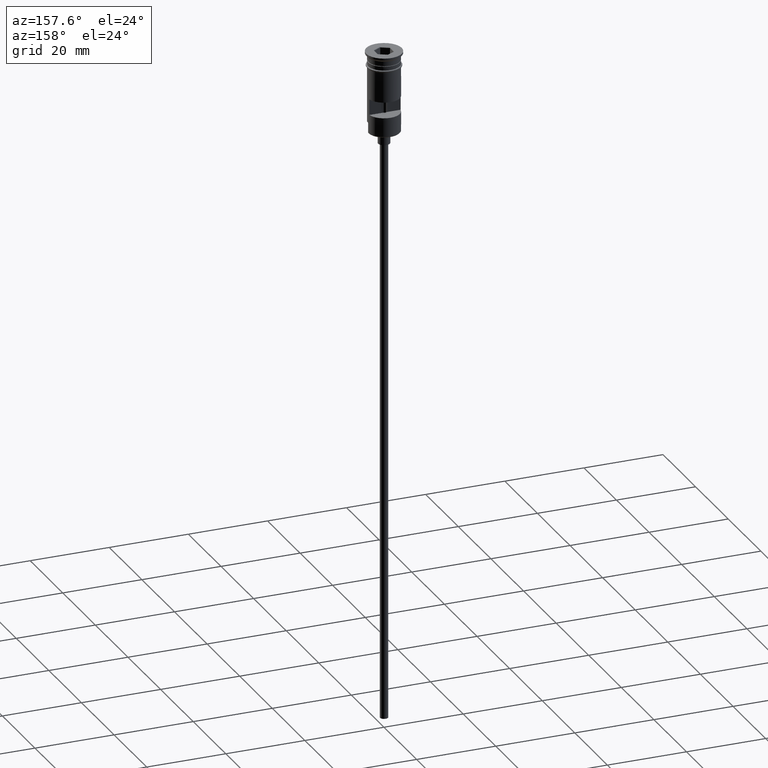
[diagram: clean part render]
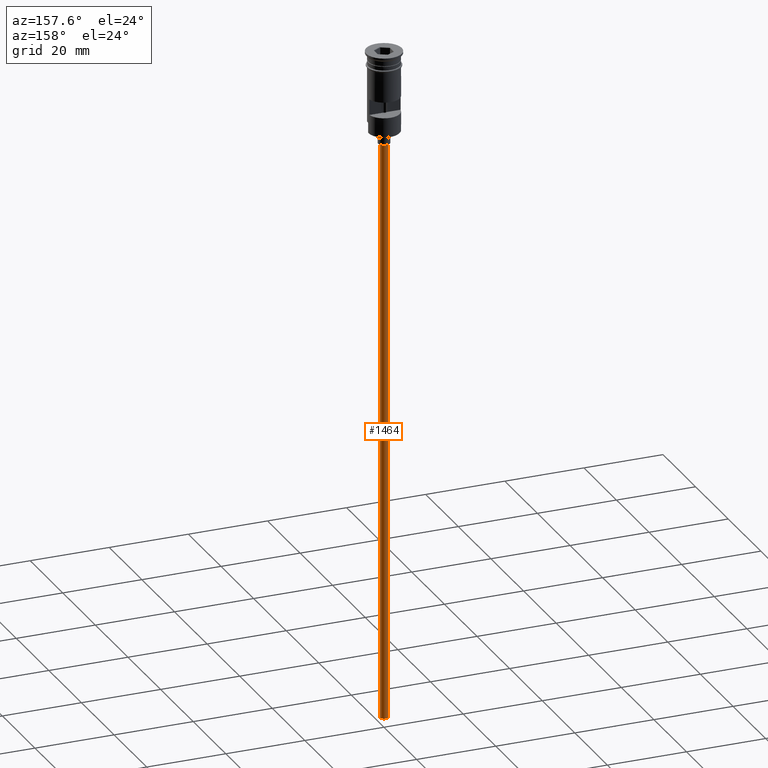
[diagram: same view with one face highlighted and labeled with its STEP entity id]
A machine part, auxiliary view. The second image highlights one B-rep face of the part: STEP entity #1464.
In plain terms, the highlighted cylindrical surface (edge-blend (fillet) strip) has radius 1 mm, axis along (-0, -0, 1).
Its self-contained STEP definition (entity closure, byte-faithful):
#23 = AXIS2_PLACEMENT_3D ( 'NONE', #528, #261, #415 ) ;
#49 = ORIENTED_EDGE ( 'NONE', *, *, #1557, .T. ) ;
#66 = DIRECTION ( 'NONE',  ( -0.000000000000000000, -0.000000000000000000, 1.000000000000000000 ) ) ;
#101 = DIRECTION ( 'NONE',  ( 0.000000000000000000, 0.000000000000000000, -1.000000000000000000 ) ) ;
#179 = CARTESIAN_POINT ( 'NONE',  ( 0.9999999999999997780, 0.000000000000000000, -170.4999999999999716 ) ) ;
#188 = EDGE_CURVE ( 'NONE', #202, #306, #522, .T. ) ;
#202 = VERTEX_POINT ( 'NONE', #823 ) ;
#245 = VERTEX_POINT ( 'NONE', #1552 ) ;
#261 = DIRECTION ( 'NONE',  ( 0.000000000000000000, 0.000000000000000000, -1.000000000000000000 ) ) ;
#306 = VERTEX_POINT ( 'NONE', #1489 ) ;
#331 = FACE_OUTER_BOUND ( 'NONE', #772, .T. ) ;
#415 = DIRECTION ( 'NONE',  ( -1.000000000000000000, 0.000000000000000000, 0.000000000000000000 ) ) ;
#436 = VECTOR ( 'NONE', #994, 1000.000000000000000 ) ;
#522 = LINE ( 'NONE', #632, #436 ) ;
#528 = CARTESIAN_POINT ( 'NONE',  ( 0.000000000000000000, 0.000000000000000000, -170.4999999999999716 ) ) ;
#578 = DIRECTION ( 'NONE',  ( 1.000000000000000000, 0.000000000000000000, 0.000000000000000000 ) ) ;
#584 = ORIENTED_EDGE ( 'NONE', *, *, #188, .T. ) ;
#586 = LINE ( 'NONE', #179, #1187 ) ;
#617 = ORIENTED_EDGE ( 'NONE', *, *, #903, .F. ) ;
#632 = CARTESIAN_POINT ( 'NONE',  ( -0.9999999999999997780, 1.224646799147352961E-16, -170.4999999999999716 ) ) ;
#683 = ORIENTED_EDGE ( 'NONE', *, *, #1060, .F. ) ;
#772 = EDGE_LOOP ( 'NONE', ( #617, #584, #49, #683 ) ) ;
#802 = CYLINDRICAL_SURFACE ( 'NONE', #985, 0.9999999999999997780 ) ;
#823 = CARTESIAN_POINT ( 'NONE',  ( -0.9999999999999997780, 1.224646799147352961E-16, -170.4999999999999716 ) ) ;
#903 = EDGE_CURVE ( 'NONE', #202, #245, #912, .T. ) ;
#907 = VERTEX_POINT ( 'NONE', #1475 ) ;
#912 = CIRCLE ( 'NONE', #23, 0.9999999999999997780 ) ;
#985 = AXIS2_PLACEMENT_3D ( 'NONE', #1172, #66, #578 ) ;
#994 = DIRECTION ( 'NONE',  ( -0.000000000000000000, -0.000000000000000000, 1.000000000000000000 ) ) ;
#1060 = EDGE_CURVE ( 'NONE', #245, #907, #586, .T. ) ;
#1101 = CIRCLE ( 'NONE', #1363, 0.9999999999999997780 ) ;
#1172 = CARTESIAN_POINT ( 'NONE',  ( 0.000000000000000000, 0.000000000000000000, -170.4999999999999716 ) ) ;
#1187 = VECTOR ( 'NONE', #1280, 1000.000000000000000 ) ;
#1280 = DIRECTION ( 'NONE',  ( -0.000000000000000000, -0.000000000000000000, 1.000000000000000000 ) ) ;
#1363 = AXIS2_PLACEMENT_3D ( 'NONE', #1421, #101, #1566 ) ;
#1421 = CARTESIAN_POINT ( 'NONE',  ( 0.000000000000000000, 0.000000000000000000, -23.49999999999999645 ) ) ;
#1464 = ADVANCED_FACE ( 'NONE', ( #331 ), #802, .T. ) ;
#1475 = CARTESIAN_POINT ( 'NONE',  ( 0.9999999999999997780, 0.000000000000000000, -23.49999999999999645 ) ) ;
#1489 = CARTESIAN_POINT ( 'NONE',  ( -0.9999999999999997780, 1.224646799147352961E-16, -23.49999999999999645 ) ) ;
#1552 = CARTESIAN_POINT ( 'NONE',  ( 0.9999999999999997780, 0.000000000000000000, -170.4999999999999716 ) ) ;
#1557 = EDGE_CURVE ( 'NONE', #306, #907, #1101, .T. ) ;
#1566 = DIRECTION ( 'NONE',  ( -1.000000000000000000, 0.000000000000000000, 0.000000000000000000 ) ) ;